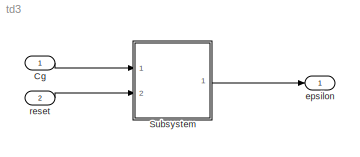
MODEL td3
KIND model
BLOCK [Inport] Cg
  IconDisplay = Port number
  OutDataTypeStr = uint32
  SID = 18
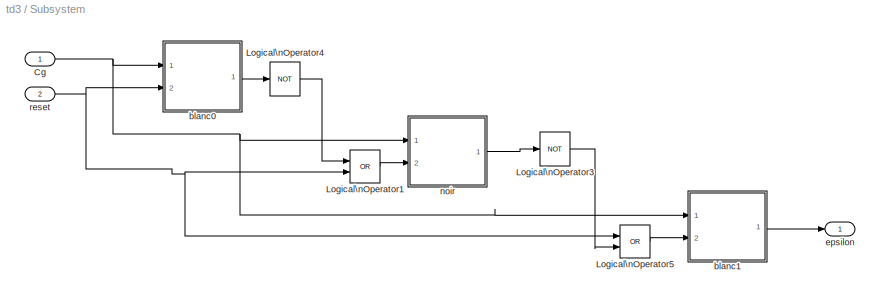
BLOCK [SubSystem] Subsystem
  Ports = [2, 1]
  RequestExecContextInheritance = off
  SID = 98
BLOCK [Inport] Subsystem/Cg
  IconDisplay = Port number
  OutDataTypeStr = uint32
  SID = 99
BLOCK [Logic] Subsystem/Logical\nOperator1
  AllPortsSameDT = off
  Operator = OR
  OutDataTypeStr = boolean
  Ports = [2, 1]
  SID = 76
BLOCK [Logic] Subsystem/Logical\nOperator3
  AllPortsSameDT = off
  Operator = NOT
  OutDataTypeStr = boolean
  Ports = [1, 1]
  SID = 74
BLOCK [Logic] Subsystem/Logical\nOperator4
  AllPortsSameDT = off
  Operator = NOT
  OutDataTypeStr = boolean
  Ports = [1, 1]
  SID = 77
BLOCK [Logic] Subsystem/Logical\nOperator5
  AllPortsSameDT = off
  Operator = OR
  OutDataTypeStr = boolean
  Ports = [2, 1]
  SID = 78
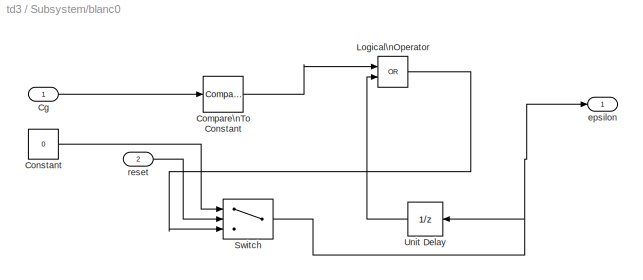
BLOCK [SubSystem] Subsystem/blanc0
  Ports = [2, 1]
  RequestExecContextInheritance = off
  SID = 80
BLOCK [Inport] Subsystem/blanc0/Cg
  IconDisplay = Port number
  SID = 81
BLOCK [Reference] Subsystem/blanc0/Compare\nTo Constant  REF=simulink/Logic and Bit\nOperations/Compare\nTo Constant
  OutDataTypeStr = boolean
  Ports = [1, 1]
  SID = 83
  SourceBlock = simulink/Logic and Bit\nOperations/Compare\nTo Constant
  SourceType = Compare To Constant
  ZeroCross = on
  const = Nb
  relop = >=
BLOCK [Constant] Subsystem/blanc0/Constant
  SID = 84
  Value = 0
BLOCK [Logic] Subsystem/blanc0/Logical\nOperator
  AllPortsSameDT = off
  Operator = OR
  OutDataTypeStr = boolean
  Ports = [2, 1]
  SID = 85
BLOCK [Switch] Subsystem/blanc0/Switch
  Criteria = u2 > Threshold
  InputSameDT = off
  SID = 86
  SaturateOnIntegerOverflow = off
BLOCK [UnitDelay] Subsystem/blanc0/Unit Delay
  InputProcessing = Elements as channels (sample based)
  SID = 87
  SampleTime = -1
BLOCK [Outport] Subsystem/blanc0/epsilon
  IconDisplay = Port number
  SID = 88
BLOCK [Inport] Subsystem/blanc0/reset
  IconDisplay = Port number
  Port = 2
  SID = 82
  SignalType = real
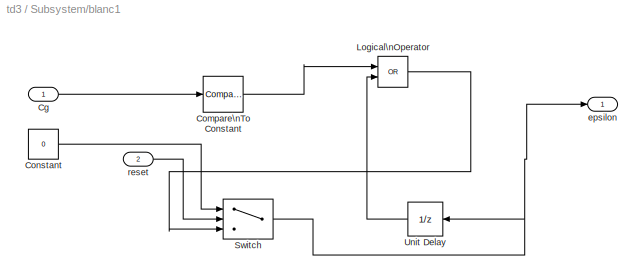
BLOCK [SubSystem] Subsystem/blanc1
  Ports = [2, 1]
  RequestExecContextInheritance = off
  SID = 89
BLOCK [Inport] Subsystem/blanc1/Cg
  IconDisplay = Port number
  SID = 90
BLOCK [Reference] Subsystem/blanc1/Compare\nTo Constant  REF=simulink/Logic and Bit\nOperations/Compare\nTo Constant
  OutDataTypeStr = boolean
  Ports = [1, 1]
  SID = 92
  SourceBlock = simulink/Logic and Bit\nOperations/Compare\nTo Constant
  SourceType = Compare To Constant
  ZeroCross = on
  const = Nb
  relop = >=
BLOCK [Constant] Subsystem/blanc1/Constant
  SID = 93
  Value = 0
BLOCK [Logic] Subsystem/blanc1/Logical\nOperator
  AllPortsSameDT = off
  Operator = OR
  OutDataTypeStr = boolean
  Ports = [2, 1]
  SID = 94
BLOCK [Switch] Subsystem/blanc1/Switch
  Criteria = u2 > Threshold
  InputSameDT = off
  SID = 95
  SaturateOnIntegerOverflow = off
BLOCK [UnitDelay] Subsystem/blanc1/Unit Delay
  InputProcessing = Elements as channels (sample based)
  SID = 96
  SampleTime = -1
BLOCK [Outport] Subsystem/blanc1/epsilon
  IconDisplay = Port number
  SID = 97
BLOCK [Inport] Subsystem/blanc1/reset
  IconDisplay = Port number
  Port = 2
  SID = 91
  SignalType = real
BLOCK [Outport] Subsystem/epsilon
  IconDisplay = Port number
  OutDataTypeStr = boolean
  SID = 101
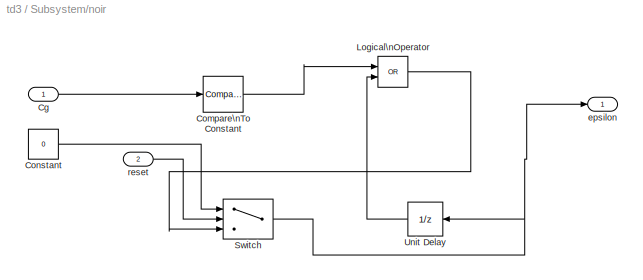
BLOCK [SubSystem] Subsystem/noir
  Ports = [2, 1]
  RequestExecContextInheritance = off
  SID = 25
BLOCK [Inport] Subsystem/noir/Cg
  IconDisplay = Port number
  SID = 26
BLOCK [Reference] Subsystem/noir/Compare\nTo Constant  REF=simulink/Logic and Bit\nOperations/Compare\nTo Constant
  OutDataTypeStr = boolean
  Ports = [1, 1]
  SID = 28
  SourceBlock = simulink/Logic and Bit\nOperations/Compare\nTo Constant
  SourceType = Compare To Constant
  ZeroCross = on
  const = Nb
  relop = <=
BLOCK [Constant] Subsystem/noir/Constant
  SID = 29
  Value = 0
BLOCK [Logic] Subsystem/noir/Logical\nOperator
  AllPortsSameDT = off
  Operator = OR
  OutDataTypeStr = boolean
  Ports = [2, 1]
  SID = 30
BLOCK [Switch] Subsystem/noir/Switch
  Criteria = u2 > Threshold
  InputSameDT = off
  SID = 31
  SaturateOnIntegerOverflow = off
BLOCK [UnitDelay] Subsystem/noir/Unit Delay
  InputProcessing = Elements as channels (sample based)
  SID = 32
  SampleTime = -1
BLOCK [Outport] Subsystem/noir/epsilon
  IconDisplay = Port number
  SID = 33
BLOCK [Inport] Subsystem/noir/reset
  IconDisplay = Port number
  Port = 2
  SID = 27
  SignalType = real
BLOCK [Inport] Subsystem/reset
  IconDisplay = Port number
  OutDataTypeStr = boolean
  Port = 2
  SID = 100
BLOCK [Outport] epsilon
  IconDisplay = Port number
  OutDataTypeStr = boolean
  SID = 20
BLOCK [Inport] reset
  IconDisplay = Port number
  OutDataTypeStr = boolean
  Port = 2
  SID = 34
LINE Cg:1 -> Subsystem:1
NET Subsystem/Cg:1 -> Subsystem/blanc0:1, Subsystem/blanc1:1, Subsystem/noir:1
LINE Subsystem/Logical\nOperator1:1 -> Subsystem/noir:2
LINE Subsystem/Logical\nOperator3:1 -> Subsystem/Logical\nOperator5:2
LINE Subsystem/Logical\nOperator4:1 -> Subsystem/Logical\nOperator1:1
LINE Subsystem/Logical\nOperator5:1 -> Subsystem/blanc1:2
LINE Subsystem/blanc0/Cg:1 -> Subsystem/blanc0/Compare\nTo Constant:1
LINE Subsystem/blanc0/Compare\nTo Constant:1 -> Subsystem/blanc0/Logical\nOperator:1
LINE Subsystem/blanc0/Constant:1 -> Subsystem/blanc0/Switch:1
LINE Subsystem/blanc0/Logical\nOperator:1 -> Subsystem/blanc0/Switch:3
NET Subsystem/blanc0/Switch:1 -> Subsystem/blanc0/Unit Delay:1, Subsystem/blanc0/epsilon:1
LINE Subsystem/blanc0/Unit Delay:1 -> Subsystem/blanc0/Logical\nOperator:2
LINE Subsystem/blanc0/reset:1 -> Subsystem/blanc0/Switch:2
LINE Subsystem/blanc0:1 -> Subsystem/Logical\nOperator4:1
LINE Subsystem/blanc1/Cg:1 -> Subsystem/blanc1/Compare\nTo Constant:1
LINE Subsystem/blanc1/Compare\nTo Constant:1 -> Subsystem/blanc1/Logical\nOperator:1
LINE Subsystem/blanc1/Constant:1 -> Subsystem/blanc1/Switch:1
LINE Subsystem/blanc1/Logical\nOperator:1 -> Subsystem/blanc1/Switch:3
NET Subsystem/blanc1/Switch:1 -> Subsystem/blanc1/Unit Delay:1, Subsystem/blanc1/epsilon:1
LINE Subsystem/blanc1/Unit Delay:1 -> Subsystem/blanc1/Logical\nOperator:2
LINE Subsystem/blanc1/reset:1 -> Subsystem/blanc1/Switch:2
LINE Subsystem/blanc1:1 -> Subsystem/epsilon:1
LINE Subsystem/noir/Cg:1 -> Subsystem/noir/Compare\nTo Constant:1
LINE Subsystem/noir/Compare\nTo Constant:1 -> Subsystem/noir/Logical\nOperator:1
LINE Subsystem/noir/Constant:1 -> Subsystem/noir/Switch:1
LINE Subsystem/noir/Logical\nOperator:1 -> Subsystem/noir/Switch:3
NET Subsystem/noir/Switch:1 -> Subsystem/noir/Unit Delay:1, Subsystem/noir/epsilon:1
LINE Subsystem/noir/Unit Delay:1 -> Subsystem/noir/Logical\nOperator:2
LINE Subsystem/noir/reset:1 -> Subsystem/noir/Switch:2
LINE Subsystem/noir:1 -> Subsystem/Logical\nOperator3:1
NET Subsystem/reset:1 -> Subsystem/Logical\nOperator1:2, Subsystem/Logical\nOperator5:1, Subsystem/blanc0:2
LINE Subsystem:1 -> epsilon:1
LINE reset:1 -> Subsystem:2
note: NET lines group one-source signal fan-out (src -> all destinations, sorted); 1:1 wires keep LINE
